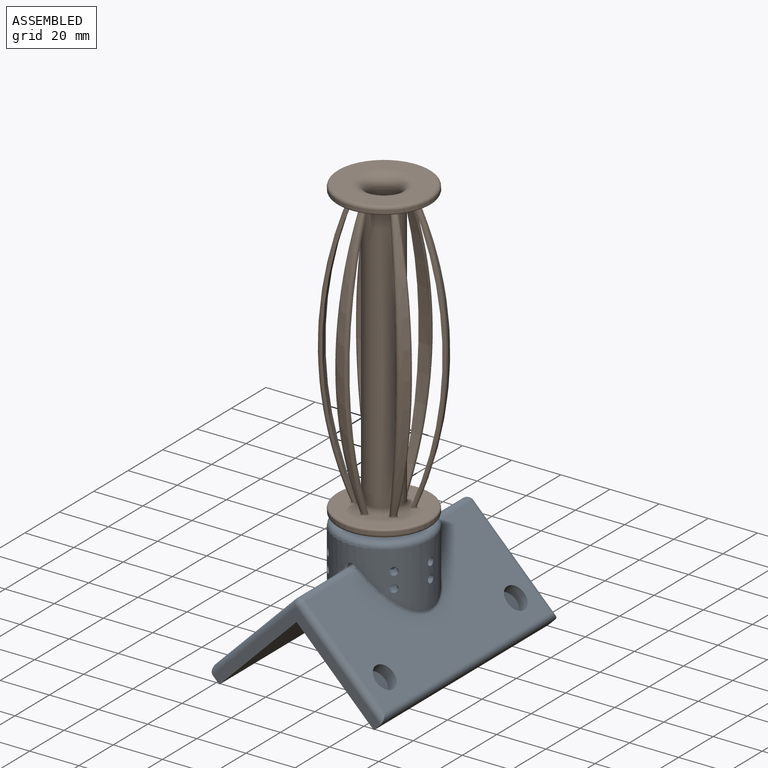
[diagram: assembled view]
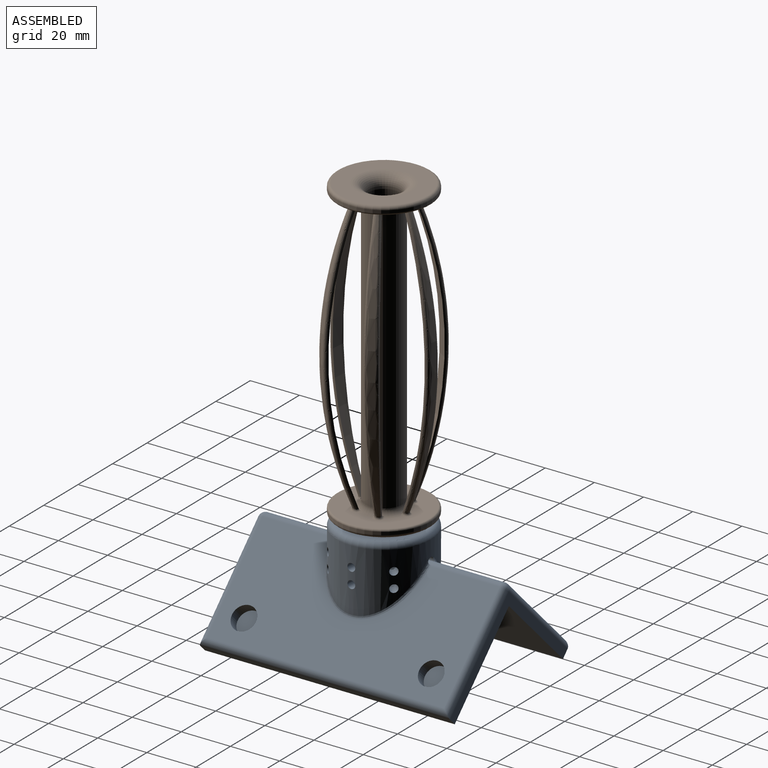
[diagram: assembled view, second angle]
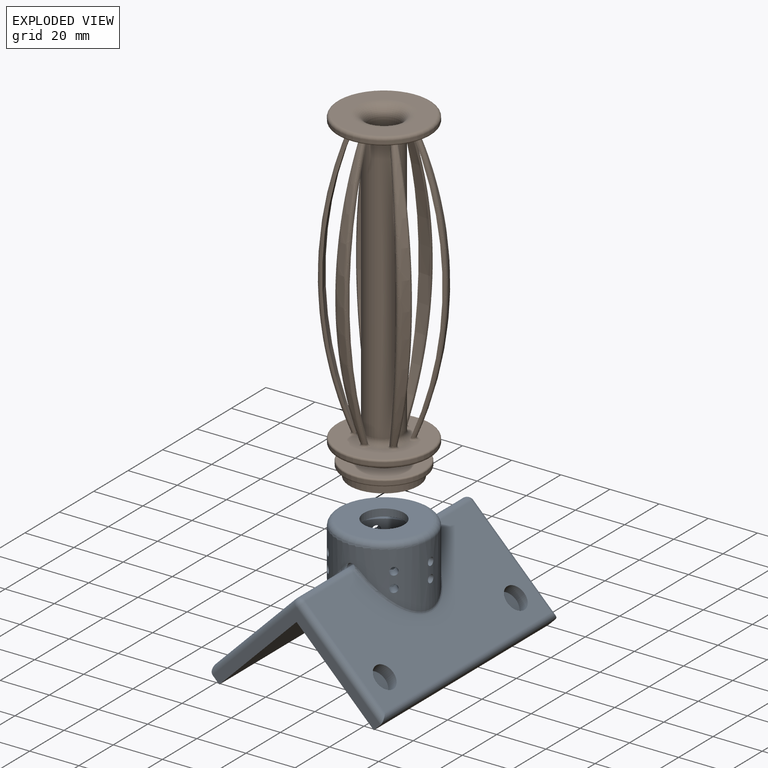
[diagram: exploded view]
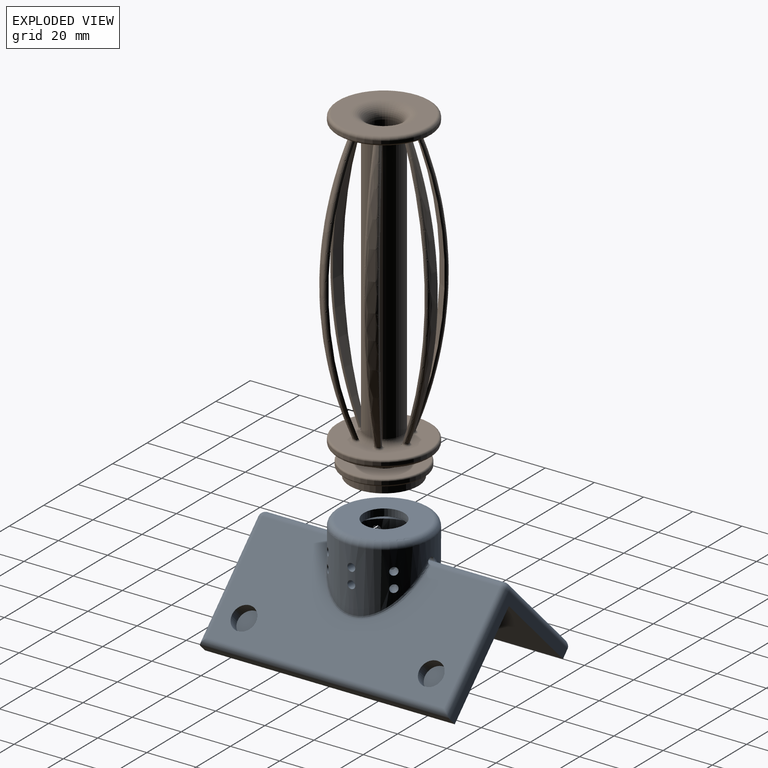
[diagram: exploded view, second angle]
ASSEMBLY  parts=2 mates=2
PART A: 55 faces, bbox 71x101.6x71 mm
  f0: plane 28.6x17.85mm, normal (0,0,1), area 388.5mm2, adj f5,f33
  f1: plane 28.6x17.85mm, normal (1,0,0), area 388.5mm2, adj f5,f33
  f2: cylinder r=1.59mm len=5.86mm, axis (0,-1,0), area 30.1mm2, adj f4,f5,f33,f51,f52
  f3: cylinder r=1.59mm len=5.86mm, axis (0,1,0), area 30.1mm2, adj f4,f5,f33,f49,f54
  f4: cylinder r=19.05mm len=45.02mm, axis (-0.71,0,-0.71), area 2081.5mm2, adj f2,f3,f18,f19,f20,f21,f22,f23
  f5: cylinder r=14.41mm len=32.67mm, axis (-0.71,0,-0.71), area 994.4mm2, adj f0,f1,f2,f3,f14,f18,f19,f20
  f6: plane 101.6x3.81mm, normal (-1,0,0), area 387.1mm2, adj f7,f10,f11,f31
  f7: plane 101.6x44.45mm, normal (0,0,-1), area 4516.1mm2, adj f6,f8,f10,f11
  f8: plane 101.6x44.45mm, normal (-1,0,0), area 4516.1mm2, adj f7,f9,f10,f11
  f9: plane 101.6x3.81mm, normal (0,0,-1), area 387.1mm2, adj f8,f10,f11,f39
  f10: plane 48.26x48.26mm, normal (0,-1,0), area 353.2mm2, adj f6,f7,f8,f9,f32,f37
  f11: plane 48.26x48.26mm, normal (0,1,0), area 353.2mm2, adj f6,f7,f8,f9,f34,f38
  f12: plane 33.02x23.35mm, normal (0.71,0,0.71), area 645.5mm2, adj f30,f44
  f13: cylinder r=16.86mm len=33.72mm, axis (0.71,0,0.71), area 390.1mm2, adj f14,f15
  f14: plane 33.72x23.84mm, normal (0.71,0,0.71), area 240.2mm2, adj f5,f13
  f15: plane 33.72x23.84mm, normal (-0.71,0,-0.71), area 682.1mm2, adj f13,f44
  f16: plane 96.52x45.72mm, normal (1,0,0), area 3499.8mm2, adj f33,f37,f38,f39,f40,f42,f53
  f17: plane 96.52x45.72mm, normal (0,0,1), area 3499.8mm2, adj f31,f32,f33,f34,f45,f47,f50
  f18: cylinder r=1.59mm len=5.52mm, axis (0.71,0,-0.71), area 46.2mm2, adj f4,f5
  f19: cylinder r=1.59mm len=5.53mm, axis (0.5,0.71,-0.5), area 46.4mm2, adj f4,f5
  f20: cylinder r=1.59mm len=5.53mm, axis (-0.5,0.71,0.5), area 46.4mm2, adj f4,f5
  f21: cylinder r=1.59mm len=5.52mm, axis (-0.71,0,0.71), area 46.2mm2, adj f4,f5
  f22: cylinder r=1.59mm len=5.53mm, axis (-0.5,-0.71,0.5), area 46.4mm2, adj f4,f5
  f23: cylinder r=1.59mm len=5.53mm, axis (0.5,-0.71,-0.5), area 46.4mm2, adj f4,f5
  f24: cylinder r=1.59mm len=5.52mm, axis (0.71,0,-0.71), area 46.2mm2, adj f4,f5
  f25: cylinder r=1.59mm len=5.53mm, axis (0.5,0.71,-0.5), area 46.4mm2, adj f4,f5
  f26: cylinder r=1.59mm len=5.53mm, axis (-0.5,0.71,0.5), area 46.4mm2, adj f4,f5
  f27: cylinder r=1.59mm len=5.52mm, axis (-0.71,0,0.71), area 46.2mm2, adj f4,f5
  f28: cylinder r=1.59mm len=5.53mm, axis (-0.5,-0.71,0.5), area 46.4mm2, adj f4,f5
  f29: cylinder r=1.59mm len=5.53mm, axis (0.5,-0.71,-0.5), area 46.4mm2, adj f4,f5
  f30: torus R=16.51mm, axis (0.71,0,0.71), area 454.4mm2, adj f4,f12
  f31: cylinder r=2.54mm len=101.6mm, axis (0,1,0), area 395.2mm2, adj f6,f17,f32,f34
  f32: cylinder r=2.54mm len=48.26mm, axis (1,0,0), area 187.5mm2, adj f10,f17,f31,f35
  f33: cylinder r=2.54mm len=96.52mm, axis (0,1,0), area 376.1mm2, adj f0,f1,f2,f3,f5,f16,f17,f35
  f34: cylinder r=2.54mm len=48.26mm, axis (-1,0,0), area 187.5mm2, adj f11,f17,f31,f36
  f35: sphere r=2.54mm, area 10.1mm2, adj f32,f33,f37
  f36: sphere r=2.54mm, area 13.8mm2, adj f33,f34,f38
  f37: cylinder r=2.54mm len=48.26mm, axis (0,0,-1), area 187.5mm2, adj f10,f16,f35,f39
  f38: cylinder r=2.54mm len=48.26mm, axis (0,0,1), area 187.5mm2, adj f11,f16,f36,f39
  f39: cylinder r=2.54mm len=101.6mm, axis (0,1,0), area 395.2mm2, adj f9,f16,f37,f38
  f40: cylinder r=4.89mm len=9.78mm, axis (1,0,0), area 146.3mm2, adj f16,f41
  f41: plane 9.78x9.78mm, normal (1,0,0), area 75.1mm2, adj f40
  f42: cylinder r=4.89mm len=9.78mm, axis (1,0,0), area 146.3mm2, adj f16,f43
  f43: plane 9.78x9.78mm, normal (1,0,0), area 75.1mm2, adj f42
  f44: cylinder r=8.19mm len=16.38mm, axis (0.71,0,0.71), area 150.3mm2, adj f12,f15
  f45: cylinder r=4.89mm len=9.78mm, axis (0,0,1), area 146.3mm2, adj f17,f46
  f46: plane 9.78x9.78mm, normal (0,0,1), area 75.1mm2, adj f45
  f47: cylinder r=4.89mm len=9.78mm, axis (0,0,1), area 146.3mm2, adj f17,f48
  f48: plane 9.78x9.78mm, normal (0,0,1), area 75.1mm2, adj f47
  f49: bspline ~2.56x1.57mm, area 1.3mm2, adj f3,f4,f33,f50
  f50: bspline ~40.28x25.03mm, area 93.2mm2, adj f4,f17,f49,f51
  f51: bspline ~2.56x1.57mm, area 1.3mm2, adj f2,f4,f33,f50
  f52: bspline ~2.56x1.57mm, area 1.3mm2, adj f2,f4,f33,f53
  f53: bspline ~40.28x25.03mm, area 93.2mm2, adj f4,f16,f52,f54
  f54: bspline ~2.56x1.57mm, area 1.3mm2, adj f3,f4,f33,f53
PART B: 144 faces, bbox 44.5x41.2x133.3 mm
  f0: revolved ~115.1x11.69mm, area 520.3mm2, adj f1,f2,f48,f49,f50,f56,f114,f120
  f1: plane 113.92x11.38mm, normal (0.13,-0.99,0), area 31.5mm2, adj f0,f3,f50,f120
  f2: plane 113.92x11.38mm, normal (0.13,0.99,0), area 31.5mm2, adj f0,f4,f56,f114
  f3: bspline ~121.9x14.08mm, area 244mm2, adj f1,f5,f51,f52,f118,f119
  f4: bspline ~124.86x15.4mm, area 244mm2, adj f2,f5,f54,f55,f115,f116
  f5: revolved ~113.48x11.05mm, area 246.5mm2, adj f3,f4,f53,f117
  f6: plane 36.58x36.58mm, normal (0,0,-1), area 690.6mm2, adj f49,f95,f96,f97,f102,f103,f104,f109
  f7: plane 36.58x36.58mm, normal (0,0,1), area 690.6mm2, adj f48,f52,f53,f54,f59,f60,f61,f66
  f8: revolved ~115.1x12.85mm, area 520.3mm2, adj f9,f10,f48,f49,f57,f63,f107,f113
  f9: plane 113.92x9.11mm, normal (-0.79,-0.61,0), area 31.5mm2, adj f8,f11,f57,f113
  f10: plane 113.92x10.61mm, normal (0.92,0.38,0), area 31.5mm2, adj f8,f12,f63,f107
  f11: bspline ~121.9x11.94mm, area 244mm2, adj f9,f13,f58,f59,f111,f112
  f12: bspline ~124.86x14.26mm, area 244mm2, adj f10,f13,f61,f62,f108,f109
  f13: revolved ~113.48x10.7mm, area 246.5mm2, adj f11,f12,f60,f110
  f14: revolved ~115.1x12.85mm, area 520.3mm2, adj f15,f16,f48,f49,f64,f70,f100,f106
  f15: plane 113.92x10.61mm, normal (-0.92,0.38,0), area 31.5mm2, adj f14,f17,f64,f106
  f16: plane 113.92x9.11mm, normal (0.79,-0.61,0), area 31.5mm2, adj f14,f18,f70,f100
  f17: bspline ~121.9x13.03mm, area 244mm2, adj f15,f19,f65,f66,f104,f105
  f18: bspline ~124.86x13mm, area 244mm2, adj f16,f19,f68,f69,f101,f102
  f19: revolved ~113.48x10.7mm, area 246.5mm2, adj f17,f18,f67,f103
  f20: cylinder r=7.68mm len=110.49mm, axis (0,0,-1), area 5334.1mm2, adj f48,f49
  f21: cylinder r=7.68mm len=15.37mm, axis (0,0,-1), area 245.2mm2, adj f23,f47
  f22: cylinder r=16.48mm len=32.96mm, axis (0,0,-1), area 144.6mm2, adj f139,f140
  f23: plane 31.69x31.69mm, normal (0,0,1), area 603.1mm2, adj f21,f140
  f24: plane 31.69x31.69mm, normal (0,0,-1), area 169.9mm2, adj f139,f141
  f25: cylinder r=6.1mm len=123.06mm, axis (0,0,1), area 4713.6mm2, adj f138,f143
  f26: cylinder r=19.05mm len=38.1mm, axis (0,0,1), area 136.8mm2, adj f135,f137
  f27: cylinder r=19.05mm len=38.1mm, axis (0,0,-1), area 136.8mm2, adj f92,f136
  f28: revolved ~115.1x11.69mm, area 520.3mm2, adj f29,f30,f48,f49,f78,f84,f93,f99
  f29: plane 113.92x11.38mm, normal (-0.13,0.99,0), area 31.5mm2, adj f28,f31,f84,f93
  f30: plane 113.92x11.38mm, normal (-0.13,-0.99,0), area 31.5mm2, adj f28,f32,f78,f99
  f31: bspline ~121.9x14.08mm, area 244mm2, adj f29,f33,f82,f83,f94,f95
  f32: bspline ~124.86x15.4mm, area 244mm2, adj f30,f33,f79,f80,f97,f98
  f33: revolved ~113.48x11.05mm, area 246.5mm2, adj f31,f32,f81,f96
  f34: revolved ~115.1x12.85mm, area 520.3mm2, adj f35,f36,f48,f49,f85,f91,f128,f134
  f35: plane 113.92x9.11mm, normal (0.79,0.61,0), area 31.5mm2, adj f34,f37,f91,f128
  f36: plane 113.92x10.61mm, normal (-0.92,-0.38,0), area 31.5mm2, adj f34,f38,f85,f134
  f37: bspline ~121.9x11.94mm, area 244mm2, adj f35,f39,f89,f90,f129,f130
  f38: bspline ~124.86x14.26mm, area 244mm2, adj f36,f39,f86,f87,f132,f133
  f39: revolved ~113.48x10.7mm, area 246.5mm2, adj f37,f38,f88,f131
  f40: revolved ~115.1x12.85mm, area 520.3mm2, adj f41,f42,f48,f49,f71,f77,f121,f127
  f41: plane 113.92x10.61mm, normal (0.92,-0.38,0), area 31.5mm2, adj f40,f43,f77,f121
  f42: plane 113.92x9.11mm, normal (-0.79,0.61,0), area 31.5mm2, adj f40,f44,f71,f127
  f43: bspline ~121.9x13.03mm, area 244mm2, adj f41,f45,f75,f76,f122,f123
  f44: bspline ~124.86x13mm, area 244mm2, adj f42,f45,f72,f73,f125,f126
  f45: revolved ~113.48x10.7mm, area 246.5mm2, adj f43,f44,f74,f124
  f46: plane 35.56x35.56mm, normal (0,0,1), area 600.8mm2, adj f137,f138
  f47: plane 35.56x35.56mm, normal (0,0,-1), area 807.7mm2, adj f21,f136
  f48: torus R=10.22mm, axis (0,0,-1), area 189.3mm2, adj f0,f7,f8,f14,f20,f28,f34,f40
  f49: torus R=10.22mm, axis (0,0,1), area 189.3mm2, adj f0,f6,f8,f14,f20,f28,f34,f40
  f50: bspline ~1.08x0.97mm, area 0.4mm2, adj f0,f1,f48,f51
  f51: bspline ~1.76x1mm, area 0.7mm2, adj f3,f48,f50,f52
  f52: bspline ~2.32x2.24mm, area 3.1mm2, adj f3,f7,f51,f53
  f53: torus R=11.91mm, axis (0,0,-1), area 0.1mm2, adj f5,f7,f52,f54
  f54: bspline ~2.32x2.24mm, area 3.1mm2, adj f4,f7,f53,f55
  f55: bspline ~1.76x1mm, area 0.7mm2, adj f4,f48,f54,f56
  f56: bspline ~1.08x0.97mm, area 0.4mm2, adj f0,f2,f48,f55
  f57: bspline ~1.23x1.12mm, area 0.4mm2, adj f8,f9,f48,f58
  f58: bspline ~1.53x1.31mm, area 0.7mm2, adj f11,f48,f57,f59
  f59: bspline ~3.07x1.65mm, area 3.1mm2, adj f7,f11,f58,f60
  f60: torus R=11.91mm, axis (0,0,-1), area 0.1mm2, adj f7,f13,f59,f61
  f61: bspline ~3.12x1.57mm, area 3.1mm2, adj f7,f12,f60,f62
  f62: bspline ~1.39x1.23mm, area 0.7mm2, adj f12,f48,f61,f63
  f63: bspline ~1.08x1.06mm, area 0.4mm2, adj f8,f10,f48,f62
  f64: bspline ~1.08x1.06mm, area 0.4mm2, adj f14,f15,f48,f65
  f65: bspline ~1.52x1.42mm, area 0.7mm2, adj f17,f48,f64,f66
  f66: bspline ~3.12x1.57mm, area 3.1mm2, adj f7,f17,f65,f67
  f67: torus R=11.91mm, axis (0,0,-1), area 0.1mm2, adj f7,f19,f66,f68
  f68: bspline ~3.07x1.65mm, area 3.1mm2, adj f7,f18,f67,f69
  f69: bspline ~1.4x1.29mm, area 0.7mm2, adj f18,f48,f68,f70
  f70: bspline ~1.23x1.12mm, area 0.4mm2, adj f14,f16,f48,f69
  f71: bspline ~1.23x1.12mm, area 0.4mm2, adj f40,f42,f48,f72
  f72: bspline ~1.75x1.47mm, area 0.7mm2, adj f44,f48,f71,f73
  f73: bspline ~3.07x1.65mm, area 3.1mm2, adj f7,f44,f72,f74
  f74: torus R=11.91mm, axis (0,0,-1), area 0.1mm2, adj f7,f45,f73,f75
  f75: bspline ~3.12x1.57mm, area 3.1mm2, adj f7,f43,f74,f76
  f76: bspline ~1.52x1.42mm, area 0.7mm2, adj f43,f48,f75,f77
  f77: bspline ~1.08x1.06mm, area 0.4mm2, adj f40,f41,f48,f76
  f78: bspline ~1.08x0.97mm, area 0.4mm2, adj f28,f30,f48,f79
  f79: bspline ~1.76x1mm, area 0.7mm2, adj f32,f48,f78,f80
  f80: bspline ~2.32x2.24mm, area 3.1mm2, adj f7,f32,f79,f81
  f81: torus R=11.91mm, axis (0,0,-1), area 0.1mm2, adj f7,f33,f80,f82
  f82: bspline ~2.32x2.24mm, area 3.1mm2, adj f7,f31,f81,f83
  f83: bspline ~1.76x1mm, area 0.7mm2, adj f31,f48,f82,f84
  f84: bspline ~1.08x0.97mm, area 0.4mm2, adj f28,f29,f48,f83
  f85: bspline ~1.08x1.06mm, area 0.4mm2, adj f34,f36,f48,f86
  f86: bspline ~1.39x1.23mm, area 0.7mm2, adj f38,f48,f85,f87
  f87: bspline ~3.12x1.57mm, area 3.1mm2, adj f7,f38,f86,f88
  f88: torus R=11.91mm, axis (0,0,-1), area 0.1mm2, adj f7,f39,f87,f89
  f89: bspline ~3.07x1.65mm, area 3.1mm2, adj f7,f37,f88,f90
  f90: bspline ~1.53x1.31mm, area 0.7mm2, adj f37,f48,f89,f91
  f91: bspline ~1.23x1.12mm, area 0.4mm2, adj f34,f35,f48,f90
  f92: torus R=18.29mm, axis (0,0,-1), area 141.2mm2, adj f7,f27
  f93: bspline ~1.08x0.97mm, area 0.4mm2, adj f28,f29,f49,f94
  f94: bspline ~1.33x0.93mm, area 0.7mm2, adj f31,f49,f93,f95
  f95: bspline ~2.32x2.24mm, area 3.1mm2, adj f6,f31,f94,f96
  f96: torus R=11.91mm, axis (0,0,1), area 0.1mm2, adj f6,f33,f95,f97
  f97: bspline ~2.32x2.24mm, area 3.1mm2, adj f6,f32,f96,f98
  f98: bspline ~1.76x1mm, area 0.7mm2, adj f32,f49,f97,f99
  f99: bspline ~1.08x0.97mm, area 0.4mm2, adj f28,f30,f49,f98
  f100: bspline ~1.23x1.12mm, area 0.4mm2, adj f14,f16,f49,f101
  f101: bspline ~1.53x1.31mm, area 0.7mm2, adj f18,f49,f100,f102
  f102: bspline ~3.07x1.65mm, area 3.1mm2, adj f6,f18,f101,f103
  f103: torus R=11.91mm, axis (0,0,1), area 0.1mm2, adj f6,f19,f102,f104
  f104: bspline ~3.12x1.57mm, area 3.1mm2, adj f6,f17,f103,f105
  f105: bspline ~1.74x1.51mm, area 0.7mm2, adj f17,f49,f104,f106
  f106: bspline ~1.08x1.06mm, area 0.4mm2, adj f14,f15,f49,f105
  f107: bspline ~1.08x1.06mm, area 0.4mm2, adj f8,f10,f49,f108
  f108: bspline ~1.52x1.42mm, area 0.7mm2, adj f12,f49,f107,f109
  f109: bspline ~3.12x1.57mm, area 3.1mm2, adj f6,f12,f108,f110
  f110: torus R=11.91mm, axis (0,0,1), area 0.1mm2, adj f6,f13,f109,f111
  f111: bspline ~3.07x1.65mm, area 3.1mm2, adj f6,f11,f110,f112
  f112: bspline ~1.75x1.47mm, area 0.7mm2, adj f11,f49,f111,f113
  f113: bspline ~1.23x1.12mm, area 0.4mm2, adj f8,f9,f49,f112
  f114: bspline ~1.08x0.97mm, area 0.4mm2, adj f0,f2,f49,f115
  f115: bspline ~1.76x1mm, area 0.7mm2, adj f4,f49,f114,f116
  f116: bspline ~2.32x2.24mm, area 3.1mm2, adj f4,f6,f115,f117
  f117: torus R=11.91mm, axis (0,0,1), area 0.1mm2, adj f5,f6,f116,f118
  f118: bspline ~2.32x2.24mm, area 3.1mm2, adj f3,f6,f117,f119
  f119: bspline ~1.33x0.93mm, area 0.7mm2, adj f3,f49,f118,f120
  f120: bspline ~1.08x0.97mm, area 0.4mm2, adj f0,f1,f49,f119
  f121: bspline ~1.08x1.06mm, area 0.4mm2, adj f40,f41,f49,f122
  f122: bspline ~1.74x1.51mm, area 0.7mm2, adj f43,f49,f121,f123
  f123: bspline ~3.12x1.57mm, area 3.1mm2, adj f6,f43,f122,f124
  f124: torus R=11.91mm, axis (0,0,1), area 0.1mm2, adj f6,f45,f123,f125
  f125: bspline ~3.07x1.65mm, area 3.1mm2, adj f6,f44,f124,f126
  f126: bspline ~1.53x1.31mm, area 0.7mm2, adj f44,f49,f125,f127
  f127: bspline ~1.23x1.12mm, area 0.4mm2, adj f40,f42,f49,f126
  f128: bspline ~1.23x1.12mm, area 0.4mm2, adj f34,f35,f49,f129
  f129: bspline ~1.75x1.47mm, area 0.7mm2, adj f37,f49,f128,f130
  f130: bspline ~3.07x1.65mm, area 3.1mm2, adj f6,f37,f129,f131
  f131: torus R=11.91mm, axis (0,0,1), area 0.1mm2, adj f6,f39,f130,f132
  f132: bspline ~3.12x1.57mm, area 3.1mm2, adj f6,f38,f131,f133
  f133: bspline ~1.52x1.42mm, area 0.7mm2, adj f38,f49,f132,f134
  f134: bspline ~1.08x1.06mm, area 0.4mm2, adj f34,f36,f49,f133
  f135: torus R=18.29mm, axis (0,0,1), area 141.2mm2, adj f6,f26
  f136: torus R=17.78mm, axis (0,0,-1), area 233mm2, adj f27,f47
  f137: torus R=17.78mm, axis (0,0,1), area 233mm2, adj f26,f46
  f138: torus R=11.18mm, axis (0,0,1), area 398.2mm2, adj f25,f46
  f139: torus R=15.84mm, axis (0,0,1), area 101.8mm2, adj f22,f24
  f140: torus R=15.84mm, axis (0,0,1), area 101.8mm2, adj f22,f23
  f141: cylinder r=14.03mm len=28.07mm, axis (0,0,1), area 313.6mm2, adj f24,f142
  f142: plane 28.07x28.07mm, normal (0,0,-1), area 226.3mm2, adj f141,f143
  f143: torus R=11.18mm, axis (0,0,-1), area 398.2mm2, adj f25,f142
PLACE A rot(axis=(0,-1,0),45deg) t=(17.05,-55.59,-34.5)mm
PLACE B rot(axis=(0,0,1),23.5deg) t=(17.05,-55.59,-20.75)mm
MATE planar B.f26 <-> A.f4  axis (0,0,-1) through (17.05,-55.59,-22.09)mm
MATE cylindrical B.f20 <-> A.f13  axis (0,0,-1) through (17.05,-55.59,-16.88)mm
